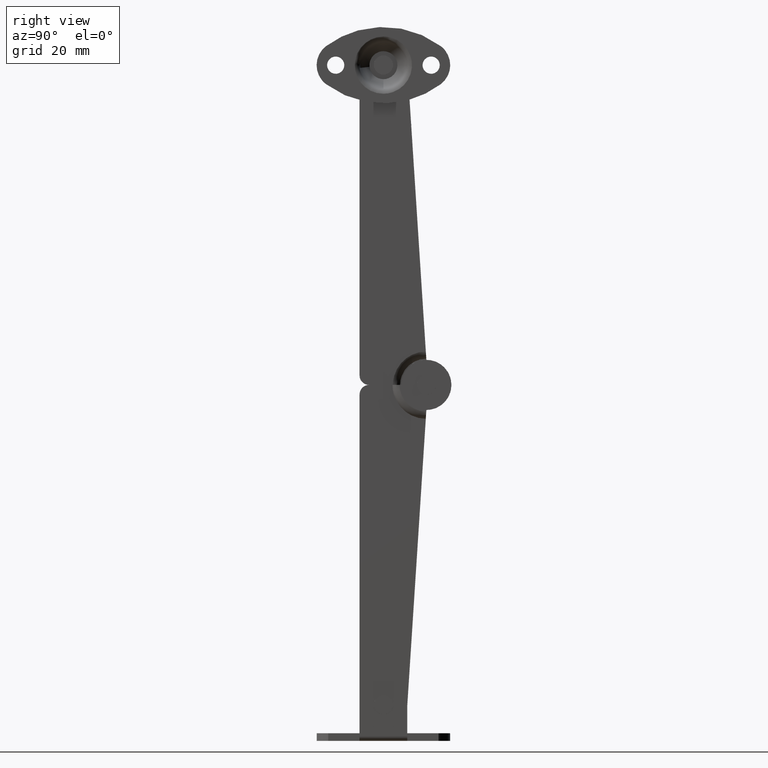
[diagram: clean part render]
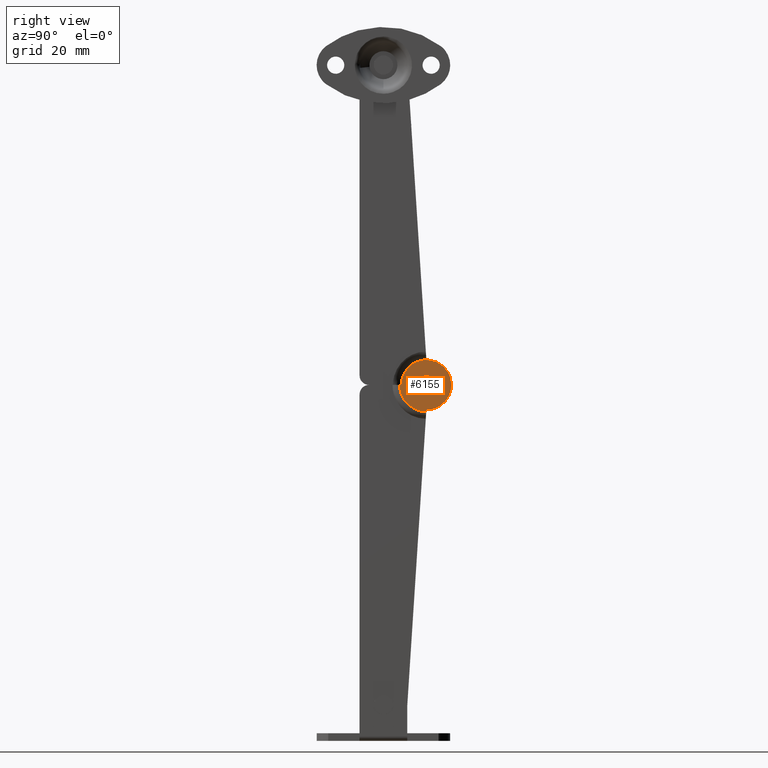
[diagram: same view with one face highlighted and labeled with its STEP entity id]
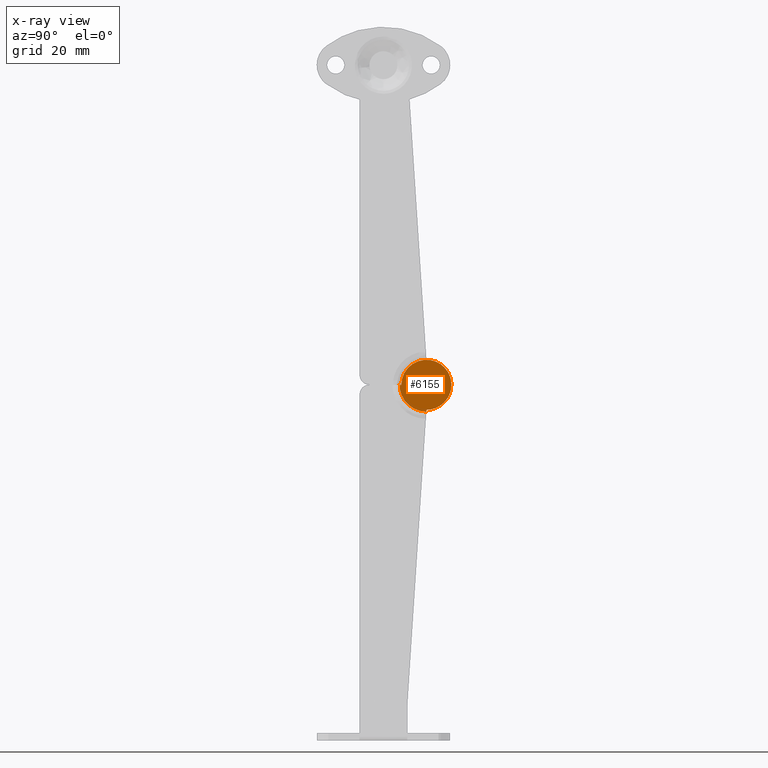
[diagram: x-ray of the same camera — body ghosted, the highlighted face saturated]
A machine part, right view. The second image highlights one B-rep face of the part: STEP entity #6155.
The next image is the same camera in x-ray: the body ghosted, the highlighted face saturated — about 0% of this face is hidden behind the body in this view.
In plain terms, the highlighted face is a freeform B-spline surface patch.
Its self-contained STEP definition (entity closure, byte-faithful):
#5469=CARTESIAN_POINT('',(5.199982000000150,7.793633956806822,-0.700909511844470));
#5470=VERTEX_POINT('',#5469);
#5476=CARTESIAN_POINT('',(5.199982000000150,8.080383815554354,0.000000184446380));
#5477=VERTEX_POINT('',#5476);
#5478=CARTESIAN_POINT('',(5.199982000000150,7.793633956806822,-0.700909511844470));
#5479=CARTESIAN_POINT('',(5.199982000000151,7.873077174039454,-0.620176291752235));
#5480=CARTESIAN_POINT('',(5.199982000000147,8.022737395372108,-0.404321189914829));
#5481=CARTESIAN_POINT('',(5.199982000000154,8.080609461912564,-0.145673771700064));
#5482=CARTESIAN_POINT('',(5.199982000000150,8.080383815554354,0.000000184446380));
#5483=B_SPLINE_CURVE_WITH_KNOTS('',3,(#5478,#5479,#5480,#5481,#5482),.UNSPECIFIED.,.F.,.U.,(4,1,4),(0.000000080711161,0.339827759072945,0.776748253585610),.UNSPECIFIED.);
#5484=EDGE_CURVE('',#5470,#5477,#5483,.T.);
#5486=CARTESIAN_POINT('',(5.199982000000150,7.080383815554370,1.000000000000001));
#5487=VERTEX_POINT('',#5486);
#5488=CARTESIAN_POINT('',(5.199982000000150,8.080383815554354,0.000000184446380));
#5489=CARTESIAN_POINT('',(5.199982000000156,8.080694828443235,0.163700029325431));
#5490=CARTESIAN_POINT('',(5.199982000000145,8.018787019303121,0.408783741620427));
#5491=CARTESIAN_POINT('',(5.199982000000150,7.800366708474517,0.718845800226922));
#5492=CARTESIAN_POINT('',(5.199982000000147,7.505669275364300,0.937444551163718));
#5493=CARTESIAN_POINT('',(5.199982000000147,7.227681910954724,1.000205052654514));
#5494=CARTESIAN_POINT('',(5.199982000000150,7.080383815554370,1.000000000000001));
#5495=B_SPLINE_CURVE_WITH_KNOTS('',3,(#5488,#5489,#5490,#5491,#5492,#5493,#5494),.UNSPECIFIED.,.F.,.U.,(4,1,1,1,4),(0.000000232850269,0.490926197147478,0.736389808752735,1.129122720947123,1.570953779327930),.UNSPECIFIED.);
#5496=EDGE_CURVE('',#5477,#5487,#5495,.T.);
#5498=CARTESIAN_POINT('',(5.199982000000150,6.080383815554387,-0.000000184446375));
#5499=VERTEX_POINT('',#5498);
#5500=CARTESIAN_POINT('',(5.199982000000150,7.080383815554370,1.000000000000001));
#5501=CARTESIAN_POINT('',(5.199982000000151,6.916686855578484,1.000308511828850));
#5502=CARTESIAN_POINT('',(5.199982000000150,6.671598359339265,0.938405856840831));
#5503=CARTESIAN_POINT('',(5.199982000000150,6.361529470126360,0.719984059695738));
#5504=CARTESIAN_POINT('',(5.199982000000153,6.142966290661237,0.425279633104722));
#5505=CARTESIAN_POINT('',(5.199982000000151,6.080158026747737,0.147300610862484));
#5506=CARTESIAN_POINT('',(5.199982000000150,6.080383815554387,-0.000000184446375));
#5507=B_SPLINE_CURVE_WITH_KNOTS('',3,(#5500,#5501,#5502,#5503,#5504,#5505,#5506),.UNSPECIFIED.,.F.,.U.,(4,1,1,1,4),(0.000000231877159,0.490926261531954,0.736389906305588,1.129122870276076,1.570953987262258),.UNSPECIFIED.);
#5508=EDGE_CURVE('',#5487,#5499,#5507,.T.);
#5510=CARTESIAN_POINT('',(5.199982000000150,6.379474240023301,-0.713250207947985));
#5511=VERTEX_POINT('',#5510);
#5512=CARTESIAN_POINT('',(5.199982000000150,6.080383815554387,-0.000000184446375));
#5513=CARTESIAN_POINT('',(5.199982000000144,6.080134648902567,-0.148951493636568));
#5514=CARTESIAN_POINT('',(5.199982000000154,6.140707399463643,-0.413388167078794));
#5515=CARTESIAN_POINT('',(5.199982000000147,6.296806499709658,-0.632135901565379));
#5516=CARTESIAN_POINT('',(5.199982000000150,6.379474240023301,-0.713250207947985));
#5517=B_SPLINE_CURVE_WITH_KNOTS('',3,(#5512,#5513,#5514,#5515,#5516),.UNSPECIFIED.,.F.,.U.,(4,1,4),(0.000000090301485,0.446740339113921,0.794205677774144),.UNSPECIFIED.);
#5518=EDGE_CURVE('',#5499,#5511,#5517,.T.);
#5596=CARTESIAN_POINT('',(5.199982000000150,7.080383815554370,-0.999999999999999));
#5597=VERTEX_POINT('',#5596);
#5598=CARTESIAN_POINT('',(5.199982000000150,6.379474240023301,-0.713250207947985));
#5599=CARTESIAN_POINT('',(5.199982000000150,6.460208851062046,-0.792693071502383));
#5600=CARTESIAN_POINT('',(5.199982000000149,6.676059802560285,-0.942354784469651));
#5601=CARTESIAN_POINT('',(5.199982000000150,6.934711484798592,-1.000225245988615));
#5602=CARTESIAN_POINT('',(5.199982000000150,7.080383815554370,-0.999999999999999));
#5603=B_SPLINE_CURVE_WITH_KNOTS('',3,(#5598,#5599,#5600,#5601,#5602),.UNSPECIFIED.,.F.,.U.,(4,1,4),(0.000000080695771,0.339827693444130,0.776748103573190),.UNSPECIFIED.);
#5604=EDGE_CURVE('',#5511,#5597,#5603,.T.);
#5606=CARTESIAN_POINT('',(5.199982000000150,7.080383815554370,-0.999999999999999));
#5607=CARTESIAN_POINT('',(5.199982000000151,7.229334754091512,-1.000247608211189));
#5608=CARTESIAN_POINT('',(5.199982000000147,7.493776144231349,-0.939677648359509));
#5609=CARTESIAN_POINT('',(5.199982000000154,7.712514178354618,-0.783575822086239));
#5610=CARTESIAN_POINT('',(5.199982000000150,7.793633956806822,-0.700909511844470));
#5611=B_SPLINE_CURVE_WITH_KNOTS('',3,(#5606,#5607,#5608,#5609,#5610),.UNSPECIFIED.,.F.,.U.,(4,1,4),(0.000000090285313,0.446740421559550,0.794205824337233),.UNSPECIFIED.);
#5612=EDGE_CURVE('',#5597,#5470,#5611,.T.);
#5637=CARTESIAN_POINT('',(5.199982000000200,7.057886751222649,-5.598469065917870));
#5638=VERTEX_POINT('',#5637);
#5649=CARTESIAN_POINT('',(5.199982000000200,1.481869548363218,-1.784587E-015));
#5650=VERTEX_POINT('',#5649);
#5651=CARTESIAN_POINT('',(5.199982000000200,7.057886751222649,-5.598469065917870));
#5652=CARTESIAN_POINT('',(5.199982000000204,6.418200513005123,-5.596394282422592));
#5653=CARTESIAN_POINT('',(5.199982000000199,5.551138334031450,-5.441976674691453));
#5654=CARTESIAN_POINT('',(5.199982000000196,4.311651271805599,-4.906270968914112));
#5655=CARTESIAN_POINT('',(5.199982000000214,3.264395565808520,-4.193571356120912));
#5656=CARTESIAN_POINT('',(5.199982000000191,2.374329375901700,-3.131901079452844));
#5657=CARTESIAN_POINT('',(5.199982000000251,1.866366566915758,-2.103518509780685));
#5658=CARTESIAN_POINT('',(5.199982000000168,1.561994974621698,-1.119247328398683));
#5659=CARTESIAN_POINT('',(5.199982000000207,1.481762897988127,-0.434023921483201));
#5660=CARTESIAN_POINT('',(5.199982000000200,1.481869548363218,-1.784587E-015));
#5661=B_SPLINE_CURVE_WITH_KNOTS('',3,(#5651,#5652,#5653,#5654,#5655,#5656,#5657,#5658,#5659,#5660),.UNSPECIFIED.,.F.,.U.,(4,1,1,1,1,1,1,4),(0.000000182260699,1.918804923764968,2.604103528669109,4.043200548904939,5.687882179016938,6.715823455127504,7.469642856172529,8.771683278574180),.UNSPECIFIED.);
#5662=EDGE_CURVE('',#5638,#5650,#5661,.T.);
#5857=CARTESIAN_POINT('',(5.199982000000150,1.830383815554450,-0.000000916297867));
#5858=VERTEX_POINT('',#5857);
#5864=CARTESIAN_POINT('',(5.199982000000150,10.792690057994660,3.712314960013344));
#5865=VERTEX_POINT('',#5864);
#5866=CARTESIAN_POINT('',(5.199982000000150,1.830383815554450,-0.000000916297867));
#5867=CARTESIAN_POINT('',(5.199982000000144,1.829857136634485,0.644334393974859));
#5868=CARTESIAN_POINT('',(5.199982000000164,2.028580478906968,1.706985416971298));
#5869=CARTESIAN_POINT('',(5.199982000000141,2.682688206865462,2.939315684001513));
#5870=CARTESIAN_POINT('',(5.199982000000160,3.453315550594785,3.855264111269893));
#5871=CARTESIAN_POINT('',(5.199982000000129,4.461395231063872,4.622406992387258));
#5872=CARTESIAN_POINT('',(5.199982000000174,5.667791032956098,5.109095514782489));
#5873=CARTESIAN_POINT('',(5.199982000000120,6.789305021482676,5.271774424159945));
#5874=CARTESIAN_POINT('',(5.199982000000154,7.855196009139353,5.229335251127925));
#5875=CARTESIAN_POINT('',(5.199982000000139,8.800062587338006,4.995694637913171));
#5876=CARTESIAN_POINT('',(5.199982000000160,9.854322592386714,4.504974671525670));
#5877=CARTESIAN_POINT('',(5.199982000000142,10.451114445512459,4.054114837847645));
#5878=CARTESIAN_POINT('',(5.199982000000150,10.792690057994660,3.712314960013344));
#5879=B_SPLINE_CURVE_WITH_KNOTS('',3,(#5866,#5867,#5868,#5869,#5870,#5871,#5872,#5873,#5874,#5875,#5876,#5877,#5878),.UNSPECIFIED.,.F.,.U.,(4,1,1,1,1,1,1,1,1,1,4),(0.000000261936158,1.932807941761235,3.189195139296956,4.155639183731049,5.508653924560609,6.958227744227475,8.021262194861123,8.891063802461600,10.147448903285261,10.920568207666189,12.370190450592670),.UNSPECIFIED.);
#5880=EDGE_CURVE('',#5858,#5865,#5879,.T.);
#5882=CARTESIAN_POINT('',(5.199982000000150,7.080400753805880,-5.249999999972681));
#5883=VERTEX_POINT('',#5882);
#5884=CARTESIAN_POINT('',(5.199982000000150,10.792690057994660,3.712314960013344));
#5885=CARTESIAN_POINT('',(5.199982000000158,11.066085602691240,3.439020805117018));
#5886=CARTESIAN_POINT('',(5.199982000000140,11.511531282433930,2.882273401938868));
#5887=CARTESIAN_POINT('',(5.199982000000155,11.967919744763879,1.989277004902490));
#5888=CARTESIAN_POINT('',(5.199982000000140,12.223784756378000,1.154870784742413));
#5889=CARTESIAN_POINT('',(5.199982000000156,12.373945162887150,0.099523619286743));
#5890=CARTESIAN_POINT('',(5.199982000000156,12.275354148366860,-1.133938980916298));
#5891=CARTESIAN_POINT('',(5.199982000000142,11.799891783814790,-2.412641423755386));
#5892=CARTESIAN_POINT('',(5.199982000000180,11.018602200657639,-3.566777991971372));
#5893=CARTESIAN_POINT('',(5.199982000000063,10.077947687960229,-4.373354942592469));
#5894=CARTESIAN_POINT('',(5.199982000000304,9.097537521709864,-4.870234358452971));
#5895=CARTESIAN_POINT('',(5.199981999999864,8.175600202280005,-5.168595640018600));
#5896=CARTESIAN_POINT('',(5.199982000000474,7.499174743618657,-5.250107311065015));
#5897=CARTESIAN_POINT('',(5.199982000000150,7.080400753805880,-5.249999999972681));
#5898=B_SPLINE_CURVE_WITH_KNOTS('',3,(#5884,#5885,#5886,#5887,#5888,#5889,#5890,#5891,#5892,#5893,#5894,#5895,#5896,#5897),.UNSPECIFIED.,.F.,.U.,(4,1,1,1,1,1,1,1,1,1,1,4),(0.000000261940693,1.159699171903984,2.126106244455380,2.995903573138840,3.769062314047401,5.315319701100598,6.668230223415613,7.827964988554660,9.470928431301374,10.340708106906449,11.113882838859510,12.370184924319330),.UNSPECIFIED.);
#5899=EDGE_CURVE('',#5865,#5883,#5898,.T.);
#5972=CARTESIAN_POINT('',(5.199982000000150,1.830383815554450,-0.000000916297867));
#5973=CARTESIAN_POINT('',(5.199982000000200,1.481869548363218,-1.784587E-015));
#5974=QUASI_UNIFORM_CURVE('',1,(#5972,#5973),.UNSPECIFIED.,.F.,.U.);
#5975=EDGE_CURVE('',#5858,#5650,#5974,.T.);
#6022=CARTESIAN_POINT('',(5.199982000000200,7.057886751222649,-5.598469065917870));
#6023=CARTESIAN_POINT('',(5.199982000000150,7.080400753805880,-5.249999999972681));
#6024=QUASI_UNIFORM_CURVE('',1,(#6022,#6023),.UNSPECIFIED.,.F.,.U.);
#6025=EDGE_CURVE('',#5638,#5883,#6024,.T.);
#6135=CARTESIAN_POINT('',(5.199982000000200,0.939987511199337,5.791896603005341));
#6136=CARTESIAN_POINT('',(5.199982000000200,12.872241529702940,5.791896603005341));
#6137=CARTESIAN_POINT('',(5.199982000000200,0.939987511199337,-6.140351107484734));
#6138=CARTESIAN_POINT('',(5.199982000000200,12.872241529702940,-6.140351107484734));
#6139=B_SPLINE_SURFACE_WITH_KNOTS('',1,1,((#6135,#6137),(#6136,#6138)),.UNSPECIFIED.,.F.,.F.,.U.,(2,2),(2,2),(0.0,11.932254018503610),(0.0,11.932247710490071),.UNSPECIFIED.);
#6140=ORIENTED_EDGE('',*,*,#6025,.T.);
#6141=ORIENTED_EDGE('',*,*,#5899,.F.);
#6142=ORIENTED_EDGE('',*,*,#5880,.F.);
#6143=ORIENTED_EDGE('',*,*,#5975,.T.);
#6144=ORIENTED_EDGE('',*,*,#5662,.F.);
#6145=EDGE_LOOP('',(#6140,#6141,#6142,#6143,#6144));
#6146=FACE_OUTER_BOUND('',#6145,.T.);
#6147=ORIENTED_EDGE('',*,*,#5496,.F.);
#6148=ORIENTED_EDGE('',*,*,#5484,.F.);
#6149=ORIENTED_EDGE('',*,*,#5612,.F.);
#6150=ORIENTED_EDGE('',*,*,#5604,.F.);
#6151=ORIENTED_EDGE('',*,*,#5518,.F.);
#6152=ORIENTED_EDGE('',*,*,#5508,.F.);
#6153=EDGE_LOOP('',(#6147,#6148,#6149,#6150,#6151,#6152));
#6154=FACE_BOUND('',#6153,.T.);
#6155=ADVANCED_FACE('',(#6146,#6154),#6139,.F.);